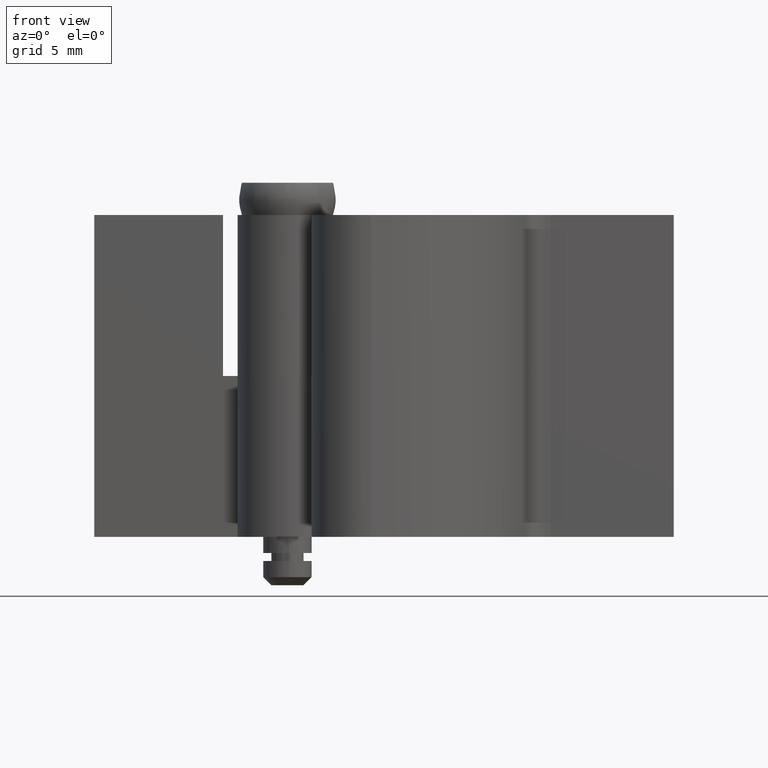
[diagram: clean part render]
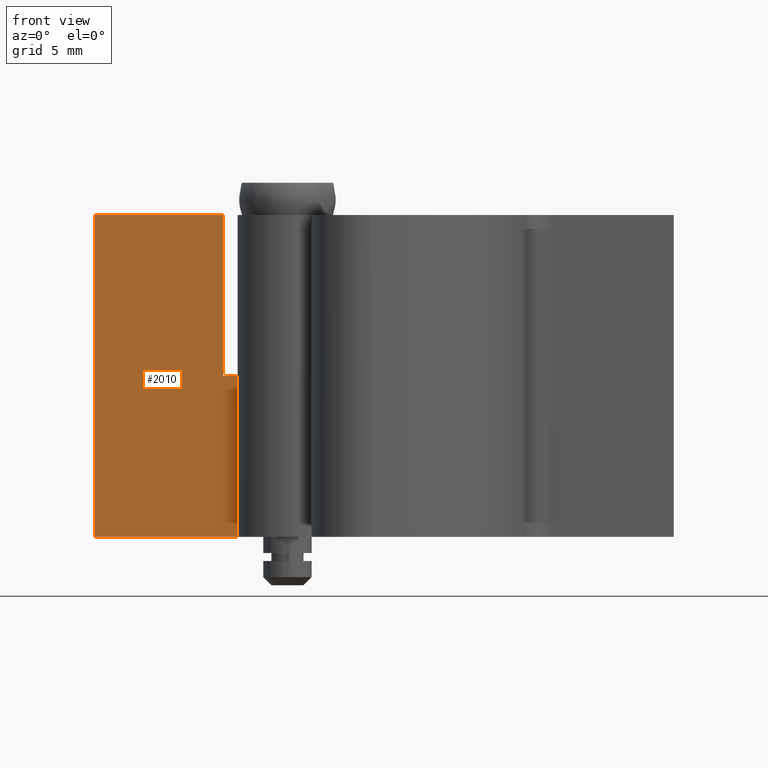
[diagram: same view with one face highlighted and labeled with its STEP entity id]
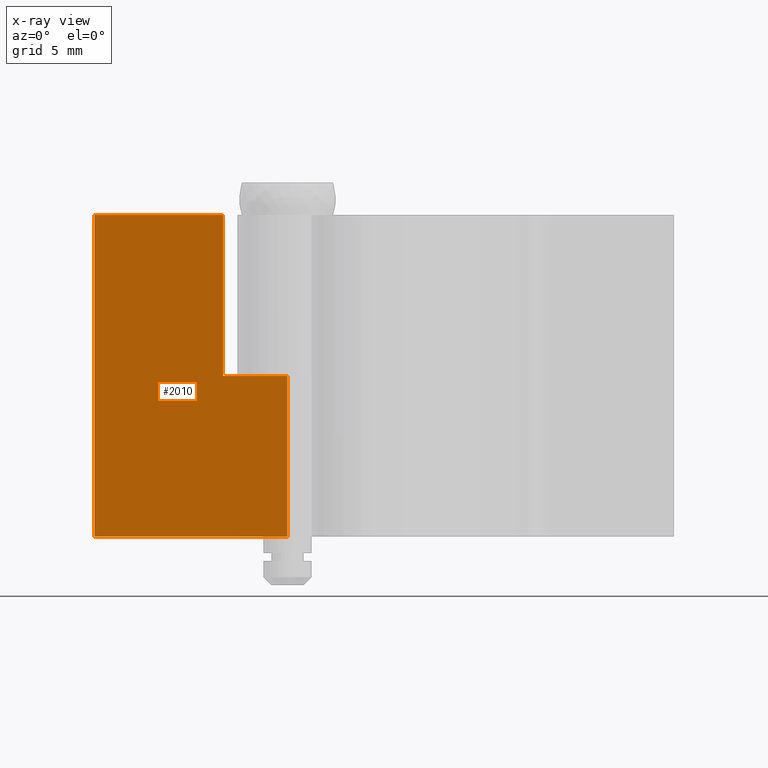
[diagram: x-ray of the same camera — body ghosted, the highlighted face saturated]
A machine part, front view. The second image highlights one B-rep face of the part: STEP entity #2010.
The next image is the same camera in x-ray: the body ghosted, the highlighted face saturated — about 0% of this face is hidden behind the body in this view.
In plain terms, the highlighted face is a freeform B-spline surface patch.
Its self-contained STEP definition (entity closure, byte-faithful):
#1782=CARTESIAN_POINT('',(-4.0,1.499999999999946,23.0));
#1783=VERTEX_POINT('',#1782);
#1784=CARTESIAN_POINT('',(-4.0,1.499999999999946,13.0));
#1785=VERTEX_POINT('',#1784);
#1786=CARTESIAN_POINT('',(-4.0,1.499999999999946,23.0));
#1787=CARTESIAN_POINT('',(-4.0,1.499999999999946,13.0));
#1788=QUASI_UNIFORM_CURVE('',1,(#1786,#1787),.UNSPECIFIED.,.F.,.U.);
#1789=EDGE_CURVE('',#1783,#1785,#1788,.T.);
#1847=CARTESIAN_POINT('',(-1.240420E-015,1.500000000000000,13.0));
#1848=VERTEX_POINT('',#1847);
#1849=CARTESIAN_POINT('',(-4.0,1.499999999999946,13.0));
#1850=CARTESIAN_POINT('',(-1.240420E-015,1.500000000000000,13.0));
#1851=QUASI_UNIFORM_CURVE('',1,(#1849,#1850),.UNSPECIFIED.,.F.,.U.);
#1852=EDGE_CURVE('',#1785,#1848,#1851,.T.);
#1888=CARTESIAN_POINT('',(-12.0,1.500000000000000,3.0));
#1889=VERTEX_POINT('',#1888);
#1932=CARTESIAN_POINT('',(-1.240422E-015,1.500000000000000,3.0));
#1933=VERTEX_POINT('',#1932);
#1953=CARTESIAN_POINT('',(-1.240422E-015,1.500000000000000,3.0));
#1954=CARTESIAN_POINT('',(-12.0,1.500000000000000,3.0));
#1955=QUASI_UNIFORM_CURVE('',1,(#1953,#1954),.UNSPECIFIED.,.F.,.U.);
#1956=EDGE_CURVE('',#1933,#1889,#1955,.T.);
#1966=CARTESIAN_POINT('',(-12.0,1.500000000000000,23.0));
#1967=VERTEX_POINT('',#1966);
#1968=CARTESIAN_POINT('',(-4.0,1.499999999999946,23.0));
#1969=CARTESIAN_POINT('',(-12.0,1.500000000000000,23.0));
#1970=QUASI_UNIFORM_CURVE('',1,(#1968,#1969),.UNSPECIFIED.,.F.,.U.);
#1971=EDGE_CURVE('',#1783,#1967,#1970,.T.);
#1989=CARTESIAN_POINT('',(-12.599399976741671,1.500000000000000,23.998999961236120));
#1990=CARTESIAN_POINT('',(-12.599399976741671,1.500000000000000,2.000999502322078));
#1991=CARTESIAN_POINT('',(0.599400298606752,1.500000000000000,23.998999961236120));
#1992=CARTESIAN_POINT('',(0.599400298606752,1.500000000000000,2.000999502322078));
#1993=B_SPLINE_SURFACE_WITH_KNOTS('',1,1,((#1989,#1991),(#1990,#1992)),.UNSPECIFIED.,.F.,.F.,.U.,(2,2),(2,2),(0.0,21.998000458914049),(0.0,13.198800275348431),.UNSPECIFIED.);
#1994=ORIENTED_EDGE('',*,*,#1852,.F.);
#1995=ORIENTED_EDGE('',*,*,#1789,.F.);
#1996=ORIENTED_EDGE('',*,*,#1971,.T.);
#1997=CARTESIAN_POINT('',(-12.0,1.500000000000000,23.0));
#1998=CARTESIAN_POINT('',(-12.0,1.500000000000000,3.0));
#1999=QUASI_UNIFORM_CURVE('',1,(#1997,#1998),.UNSPECIFIED.,.F.,.U.);
#2000=EDGE_CURVE('',#1967,#1889,#1999,.T.);
#2001=ORIENTED_EDGE('',*,*,#2000,.T.);
#2002=ORIENTED_EDGE('',*,*,#1956,.F.);
#2003=CARTESIAN_POINT('',(-1.240420E-015,1.500000000000000,13.0));
#2004=CARTESIAN_POINT('',(-1.240422E-015,1.500000000000000,3.0));
#2005=QUASI_UNIFORM_CURVE('',1,(#2003,#2004),.UNSPECIFIED.,.F.,.U.);
#2006=EDGE_CURVE('',#1848,#1933,#2005,.T.);
#2007=ORIENTED_EDGE('',*,*,#2006,.F.);
#2008=EDGE_LOOP('',(#1994,#1995,#1996,#2001,#2002,#2007));
#2009=FACE_OUTER_BOUND('',#2008,.T.);
#2010=ADVANCED_FACE('',(#2009),#1993,.T.);